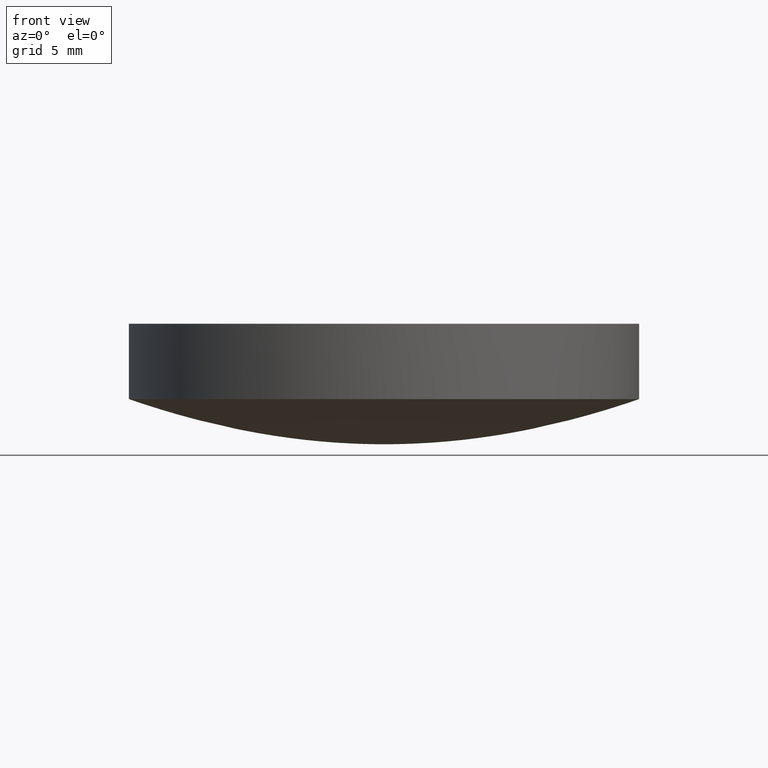
[diagram: clean part render]
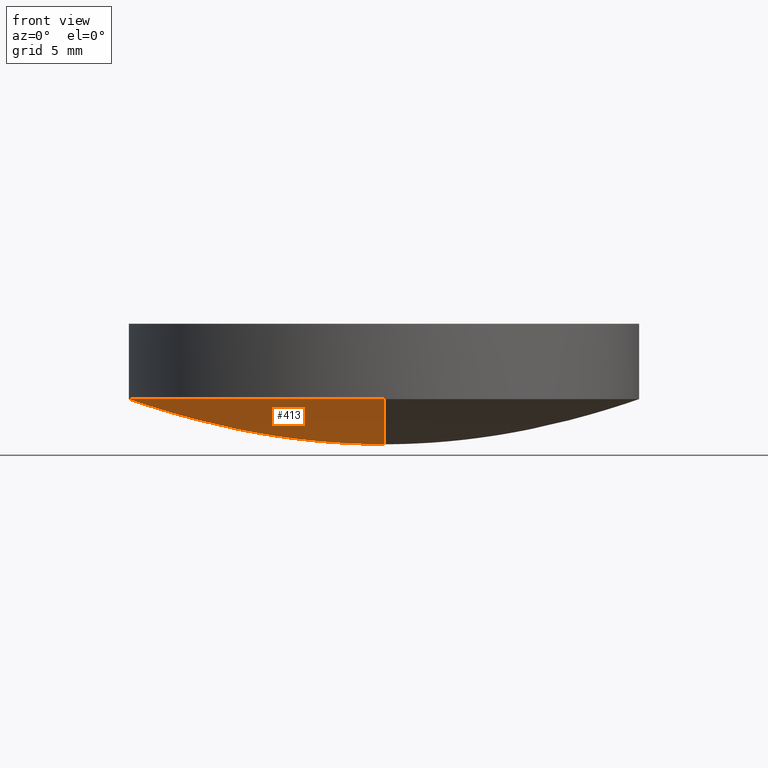
[diagram: same view with one face highlighted and labeled with its STEP entity id]
A machine part, front view. The second image highlights one B-rep face of the part: STEP entity #413.
In plain terms, the highlighted face is a freeform B-spline surface patch.
Its self-contained STEP definition (entity closure, byte-faithful):
#3 = CARTESIAN_POINT ( 'NONE',  ( -9.292796699924739176E-16, -7.588144358352749919, 0.8112916420088790437 ) ) ;
#5 = CARTESIAN_POINT ( 'NONE',  ( -2.823676809465809789, 1.729003383269460226E-16, 0.1104526157183659957 ) ) ;
#8 = CARTESIAN_POINT ( 'NONE',  ( 0.000000000000000000, 4.411899105315640668, 0.2736846880030949780 ) ) ;
#10 = CARTESIAN_POINT ( 'NONE',  ( 1.853112057911709964, -3.404111625274400151E-16, 0.04462971761608650750 ) ) ;
#11 = CARTESIAN_POINT ( 'NONE',  ( 0.000000000000000000, 11.12088207166359943, 1.723977609967809910 ) ) ;
#13 = CARTESIAN_POINT ( 'NONE',  ( 4.411899105315640668, -8.104527176228809510E-16, 0.2736846880030949780 ) ) ;
#15 = CARTESIAN_POINT ( 'NONE',  ( 0.000000000000000000, 8.293787562700359217, 0.9682949744517169721 ) ) ;
#16 = CARTESIAN_POINT ( 'NONE',  ( 12.69999999999999929, 12.69999999999999929, 2.247269223239399594 ) ) ;
#17 = CARTESIAN_POINT ( 'NONE',  ( 0.000000000000000000, 0.000000000000000000, 0.000000000000000000 ) ) ;
#20 = CARTESIAN_POINT ( 'NONE',  ( 9.881753641688270307, 9.881753641688270307, 1.370214453410330213 ) ) ;
#23 = CARTESIAN_POINT ( 'NONE',  ( -3.458006766538920453E-16, -2.823676809465809789, 0.1104526157183659957 ) ) ;
#26 = CARTESIAN_POINT ( 'NONE',  ( 0.000000000000000000, 0.2646510451225539962, 0.000000000000000000 ) ) ;
#27 = CARTESIAN_POINT ( 'NONE',  ( -5.403018117485879909E-16, -4.411899105315640668, 0.2736846880030949780 ) ) ;
#28 = CARTESIAN_POINT ( 'NONE',  ( -3.241040553003370126E-17, -0.2646510451225539962, 0.000000000000000000 ) ) ;
#32 = CARTESIAN_POINT ( 'NONE',  ( -7.588144358352749919, 4.646398349962369588E-16, 0.8112916420088790437 ) ) ;
#36 = CARTESIAN_POINT ( 'NONE',  ( 0.000000000000000000, 9.176139476843300002, 1.183323889670500062 ) ) ;
#37 = CIRCLE ( 'NONE', #285, 12.70000000000000284 ) ;
#43 = CARTESIAN_POINT ( 'NONE',  ( 6.000059958291040552, 6.000059958291040552, 0.5076367197546349797 ) ) ;
#45 = CARTESIAN_POINT ( 'NONE',  ( -6.705730617368448776, -6.705730617368448776, 0.6340659673807349517 ) ) ;
#46 = CARTESIAN_POINT ( 'NONE',  ( 0.000000000000000000, 11.12088207166359943, 1.723977609967809910 ) ) ;
#47 = CARTESIAN_POINT ( 'NONE',  ( 0.000000000000000000, 0.000000000000000000, 0.000000000000000000 ) ) ;
#48 = EDGE_CURVE ( 'NONE', #84, #178, #143, .T. ) ;
#49 = CARTESIAN_POINT ( 'NONE',  ( -5.117593248833900432, -5.117593248833889774, 0.3689892521256640245 ) ) ;
#50 = ORIENTED_EDGE ( 'NONE', *, *, #48, .T. ) ;
#51 = CARTESIAN_POINT ( 'NONE',  ( 0.000000000000000000, 3.529391070972859978, 0.1742189932542360098 ) ) ;
#52 = CARTESIAN_POINT ( 'NONE',  ( 11.12088207166359943, -2.042872894913700070E-15, 1.723977609967809910 ) ) ;
#54 = CARTESIAN_POINT ( 'NONE',  ( 4.411899105315639780, -4.411899105315650438, 0.2736846880030949780 ) ) ;
#55 = CARTESIAN_POINT ( 'NONE',  ( 12.00062017183519991, 12.00062017183519991, 2.005515679943810081 ) ) ;
#58 = CARTESIAN_POINT ( 'NONE',  ( -1.210165796725620084E-15, -9.881753641688270307, 1.370214453410329991 ) ) ;
#61 = CARTESIAN_POINT ( 'NONE',  ( -12.69999999999999929, 7.776507174585690191E-16, 2.247269223239400038 ) ) ;
#66 = CARTESIAN_POINT ( 'NONE',  ( -1.189071713856240088E-16, -0.9709507383550211035, 0.007996846882740939536 ) ) ;
#76 = CARTESIAN_POINT ( 'NONE',  ( 0.000000000000000000, 3.529391070972859978, 0.1742189932542360098 ) ) ;
#78 = CARTESIAN_POINT ( 'NONE',  ( -0.9709507383550212145, -0.9709507383550212145, 0.007996846882740939536 ) ) ;
#79 = CARTESIAN_POINT ( 'NONE',  ( 3.529391070972860422, -3.529391070972860422, 0.1742189932542360098 ) ) ;
#81 = CARTESIAN_POINT ( 'NONE',  ( 0.000000000000000000, 9.881753641688270307, 1.370214453410329991 ) ) ;
#83 = CARTESIAN_POINT ( 'NONE',  ( 5.117593248833900432, 5.117593248833889774, 0.3689892521256640245 ) ) ;
#84 = VERTEX_POINT ( 'NONE', #245 ) ;
#86 = CARTESIAN_POINT ( 'NONE',  ( 0.000000000000000000, 6.705730617368449664, 0.6340659673807349517 ) ) ;
#87 = CARTESIAN_POINT ( 'NONE',  ( -0.2646510451225540517, -0.2646510451225540517, 0.000000000000000000 ) ) ;
#90 = CARTESIAN_POINT ( 'NONE',  ( 6.000059958291040552, -6.000059958291040552, 0.5076367197546349797 ) ) ;
#91 = CARTESIAN_POINT ( 'NONE',  ( 0.000000000000000000, 12.00062017183519991, 2.005515679943810081 ) ) ;
#92 = CARTESIAN_POINT ( 'NONE',  ( 0.000000000000000000, 0.000000000000000000, 0.000000000000000000 ) ) ;
#93 = CARTESIAN_POINT ( 'NONE',  ( -3.529391070972859978, 2.161128739003080043E-16, 0.1742189932542360098 ) ) ;
#94 = CARTESIAN_POINT ( 'NONE',  ( -9.881753641688270307, -9.881753641688270307, 1.370214453410330213 ) ) ;
#96 = CARTESIAN_POINT ( 'NONE',  ( 11.12088207166360121, -11.12088207166360121, 1.723977609967809910 ) ) ;
#98 = EDGE_CURVE ( 'NONE', #230, #178, #170, .T. ) ;
#99 = CARTESIAN_POINT ( 'NONE',  ( -1.555301434917141588E-15, -12.70000000000000462, 2.247269223239400926 ) ) ;
#103 = CARTESIAN_POINT ( 'NONE',  ( -12.70000000000000107, 6.671230152170136933E-16, 2.247269223239400038 ) ) ;
#105 = CARTESIAN_POINT ( 'NONE',  ( 9.176139476843291121, -9.176139476843300002, 1.183323889670500062 ) ) ;
#118 = VERTEX_POINT ( 'NONE', #103 ) ;
#122 = CARTESIAN_POINT ( 'NONE',  ( -8.293787562700371652, -8.293787562700359217, 0.9682949744517168611 ) ) ;
#125 = CARTESIAN_POINT ( 'NONE',  ( 2.823676809465809345, 2.823676809465809345, 0.1104526157183659957 ) ) ;
#127 = CARTESIAN_POINT ( 'NONE',  ( 0.2646510451225540517, -0.2646510451225540517, 0.000000000000000000 ) ) ;
#128 = CARTESIAN_POINT ( 'NONE',  ( -5.403018117485879909E-16, -4.411899105315640668, 0.2736846880030949780 ) ) ;
#129 = CARTESIAN_POINT ( 'NONE',  ( 0.000000000000000000, 12.00062017183519991, 2.005515679943810081 ) ) ;
#130 = CARTESIAN_POINT ( 'NONE',  ( 0.000000000000000000, 0.2646510451225539962, 0.000000000000000000 ) ) ;
#131 = CARTESIAN_POINT ( 'NONE',  ( -6.000059958291040552, -6.000059958291040552, 0.5076367197546349797 ) ) ;
#132 = EDGE_LOOP ( 'NONE', ( #144, #520, #389, #50 ) ) ;
#136 = CARTESIAN_POINT ( 'NONE',  ( 6.705730617368449664, -1.231822730475699957E-15, 0.6340659673807349517 ) ) ;
#137 = CARTESIAN_POINT ( 'NONE',  ( 12.69999999999999929, -12.69999999999999929, 2.247269223239399594 ) ) ;
#138 = CARTESIAN_POINT ( 'NONE',  ( 0.000000000000000000, 0.000000000000000000, 0.000000000000000000 ) ) ;
#139 = CARTESIAN_POINT ( 'NONE',  ( 0.000000000000000000, 2.823676809465809789, 0.1104526157183659957 ) ) ;
#141 = CARTESIAN_POINT ( 'NONE',  ( 0.000000000000000000, 12.00062017183519991, 2.005515679943810081 ) ) ;
#143 = B_SPLINE_CURVE_WITH_KNOTS ( 'NONE', 3,
 ( #222, #129, #46, #81, #477, #15, #391, #86, #305, #183, #479, #51, #433, #356, #331, #26, #332 ),
 .UNSPECIFIED., .F., .F.,
 ( 4, 1, 1, 1, 1, 1, 1, 1, 1, 1, 1, 1, 1, 1, 4 ),
 ( 0.000000000000000000, 0.1713303433968769995, 0.2138002220556740052, 0.2983038402943499756, 0.3403375798742280245, 0.4240257264242249802, 0.4656801333943419996, 0.5486747096414229530, 0.5900148789183859988, 0.6724530698831030495, 0.7135510915708570545, 0.7955825529604799717, 0.8365159926623489950, 0.9387247161821089536, 1.000000000000000000 ),
 .UNSPECIFIED. ) ;
#144 = ORIENTED_EDGE ( 'NONE', *, *, #98, .F. ) ;
#146 = CARTESIAN_POINT ( 'NONE',  ( 0.000000000000000000, 0.9709507383550211035, 0.007996846882740939536 ) ) ;
#150 = CARTESIAN_POINT ( 'NONE',  ( 0.000000000000000000, 0.000000000000000000, 0.000000000000000000 ) ) ;
#153 = CARTESIAN_POINT ( 'NONE',  ( -1.210165796725620084E-15, -9.881753641688270307, 1.370214453410329991 ) ) ;
#160 = CARTESIAN_POINT ( 'NONE',  ( 0.000000000000000000, 8.293787562700359217, 0.9682949744517169721 ) ) ;
#165 = CARTESIAN_POINT ( 'NONE',  ( -8.293787562700359217, 8.293787562700359217, 0.9682949744517168611 ) ) ;
#167 = CARTESIAN_POINT ( 'NONE',  ( -1.015696039146910080E-15, -8.293787562700359217, 0.9682949744517169721 ) ) ;
#170 = B_SPLINE_CURVE_WITH_KNOTS ( 'NONE', 3,
 ( #99, #200, #364, #153, #532, #412, #247, #414, #416, #500, #27, #539, #23, #455, #66, #28, #276 ),
 .UNSPECIFIED., .F., .F.,
 ( 4, 1, 1, 1, 1, 1, 1, 1, 1, 1, 1, 1, 1, 1, 4 ),
 ( 0.000000000000000000, 0.1713303433968769995, 0.2138002220556740052, 0.2983038402943499756, 0.3403375798742280245, 0.4240257264242249802, 0.4656801333943419996, 0.5486747096414229530, 0.5900148789183859988, 0.6724530698831030495, 0.7135510915708570545, 0.7955825529604799717, 0.8365159926623489950, 0.9387247161821089536, 1.000000000000000000 ),
 .UNSPECIFIED. ) ;
#172 = CARTESIAN_POINT ( 'NONE',  ( -3.458006766538920453E-16, -2.823676809465809789, 0.1104526157183659957 ) ) ;
#175 = CARTESIAN_POINT ( 'NONE',  ( 0.000000000000000000, 5.117593248833890662, 0.3689892521256640801 ) ) ;
#178 = VERTEX_POINT ( 'NONE', #537 ) ;
#180 = CARTESIAN_POINT ( 'NONE',  ( 1.853112057911709742, 1.853112057911709742, 0.04462971761608650056 ) ) ;
#182 = CARTESIAN_POINT ( 'NONE',  ( 9.176139476843300002, -1.685629475826870230E-15, 1.183323889670500062 ) ) ;
#183 = CARTESIAN_POINT ( 'NONE',  ( 0.000000000000000000, 5.117593248833890662, 0.3689892521256640801 ) ) ;
#186 = CARTESIAN_POINT ( 'NONE',  ( 0.000000000000000000, 0.000000000000000000, 0.000000000000000000 ) ) ;
#187 = CARTESIAN_POINT ( 'NONE',  ( 0.000000000000000000, 1.853112057911709964, 0.04462971761608650750 ) ) ;
#191 =( BOUNDED_SURFACE ( )  B_SPLINE_SURFACE ( 3, 2, ( 
 ( #362, #442, #61, #283, #243, #137, #358, #16, #197 ),
 ( #141, #480, #410, #357, #397, #533, #320, #55, #91 ),
 ( #11, #525, #268, #487, #237, #96, #52, #277, #445 ),
 ( #524, #317, #484, #94, #58, #240, #406, #20, #193 ),
 ( #535, #341, #438, #288, #248, #105, #182, #311, #36 ),
 ( #160, #165, #510, #122, #167, #213, #470, #419, #505 ),
 ( #218, #456, #32, #385, #3, #459, #376, #333, #209 ),
 ( #379, #336, #263, #45, #431, #306, #136, #310, #315 ),
 ( #478, #519, #388, #131, #523, #90, #476, #43, #440 ),
 ( #348, #267, #223, #49, #482, #437, #302, #83, #175 ),
 ( #229, #475, #473, #398, #128, #54, #13, #264, #8 ),
 ( #234, #435, #93, #514, #271, #79, #429, #220, #76 ),
 ( #225, #350, #5, #402, #172, #343, #512, #125, #139 ),
 ( #187, #261, #355, #304, #516, #395, #10, #180, #352 ),
 ( #146, #321, #392, #78, #346, #257, #434, #227, #515 ),
 ( #349, #260, #217, #87, #351, #127, #428, #430, #130 ),
 ( #309, #526, #17, #481, #150, #47, #92, #138, #186 ) ),
 .UNSPECIFIED., .F., .T., .T. ) 
 B_SPLINE_SURFACE_WITH_KNOTS ( ( 4, 1, 1, 1, 1, 1, 1, 1, 1, 1, 1, 1, 1, 1, 4 ),
 ( 3, 2, 2, 2, 3 ),
 ( 0.000000000000000000, 0.1713303433968769995, 0.2138002220556740052, 0.2983038402943499756, 0.3403375798742280245, 0.4240257264242249802, 0.4656801333943419996, 0.5486747096414229530, 0.5900148789183859988, 0.6724530698831030495, 0.7135510915708570545, 0.7955825529604799717, 0.8365159926623489950, 0.9387247161821089536, 1.000000000000000000 ),
 ( 0.000000000000000000, 90.00000000000000000, 180.0000000000000000, 270.0000000000000000, 360.0000000000000000 ),
 .UNSPECIFIED. ) 
 GEOMETRIC_REPRESENTATION_ITEM ( )  RATIONAL_B_SPLINE_SURFACE ( (
 ( 1.000000000000000000, 0.7071067811865480168, 1.000000000000000000, 0.7071067811865480168, 1.000000000000000000, 0.7071067811865480168, 1.000000000000000000, 0.7071067811865480168, 1.000000000000000000),
 ( 1.000000000000000000, 0.7071067811865480168, 1.000000000000000000, 0.7071067811865480168, 1.000000000000000000, 0.7071067811865480168, 1.000000000000000000, 0.7071067811865480168, 1.000000000000000000),
 ( 1.000000000000000000, 0.7071067811865480168, 1.000000000000000000, 0.7071067811865480168, 1.000000000000000000, 0.7071067811865480168, 1.000000000000000000, 0.7071067811865480168, 1.000000000000000000),
 ( 1.000000000000000000, 0.7071067811865480168, 1.000000000000000000, 0.7071067811865480168, 1.000000000000000000, 0.7071067811865480168, 1.000000000000000000, 0.7071067811865480168, 1.000000000000000000),
 ( 1.000000000000000000, 0.7071067811865480168, 1.000000000000000000, 0.7071067811865480168, 1.000000000000000000, 0.7071067811865480168, 1.000000000000000000, 0.7071067811865480168, 1.000000000000000000),
 ( 1.000000000000000000, 0.7071067811865480168, 1.000000000000000000, 0.7071067811865480168, 1.000000000000000000, 0.7071067811865480168, 1.000000000000000000, 0.7071067811865480168, 1.000000000000000000),
 ( 1.000000000000000000, 0.7071067811865480168, 1.000000000000000000, 0.7071067811865480168, 1.000000000000000000, 0.7071067811865480168, 1.000000000000000000, 0.7071067811865480168, 1.000000000000000000),
 ( 1.000000000000000000, 0.7071067811865480168, 1.000000000000000000, 0.7071067811865480168, 1.000000000000000000, 0.7071067811865480168, 1.000000000000000000, 0.7071067811865480168, 1.000000000000000000),
 ( 1.000000000000000000, 0.7071067811865480168, 1.000000000000000000, 0.7071067811865480168, 1.000000000000000000, 0.7071067811865480168, 1.000000000000000000, 0.7071067811865480168, 1.000000000000000000),
 ( 1.000000000000000000, 0.7071067811865480168, 1.000000000000000000, 0.7071067811865480168, 1.000000000000000000, 0.7071067811865480168, 1.000000000000000000, 0.7071067811865480168, 1.000000000000000000),
 ( 1.000000000000000000, 0.7071067811865480168, 1.000000000000000000, 0.7071067811865480168, 1.000000000000000000, 0.7071067811865480168, 1.000000000000000000, 0.7071067811865480168, 1.000000000000000000),
 ( 1.000000000000000000, 0.7071067811865480168, 1.000000000000000000, 0.7071067811865480168, 1.000000000000000000, 0.7071067811865480168, 1.000000000000000000, 0.7071067811865480168, 1.000000000000000000),
 ( 1.000000000000000000, 0.7071067811865480168, 1.000000000000000000, 0.7071067811865480168, 1.000000000000000000, 0.7071067811865480168, 1.000000000000000000, 0.7071067811865480168, 1.000000000000000000),
 ( 1.000000000000000000, 0.7071067811865480168, 1.000000000000000000, 0.7071067811865480168, 1.000000000000000000, 0.7071067811865480168, 1.000000000000000000, 0.7071067811865480168, 1.000000000000000000),
 ( 1.000000000000000000, 0.7071067811865480168, 1.000000000000000000, 0.7071067811865480168, 1.000000000000000000, 0.7071067811865480168, 1.000000000000000000, 0.7071067811865480168, 1.000000000000000000),
 ( 1.000000000000000000, 0.7071067811865480168, 1.000000000000000000, 0.7071067811865480168, 1.000000000000000000, 0.7071067811865480168, 1.000000000000000000, 0.7071067811865480168, 1.000000000000000000),
 ( 1.000000000000000000, 0.7071067811865480168, 1.000000000000000000, 0.7071067811865480168, 1.000000000000000000, 0.7071067811865480168, 1.000000000000000000, 0.7071067811865480168, 1.000000000000000000) ) ) 
 REPRESENTATION_ITEM ( '' )  SURFACE ( )  );
#192 = DIRECTION ( 'NONE',  ( 3.414809992080330256E-17, -3.414809992080330256E-17, -1.000000000000000000 ) ) ;
#193 = CARTESIAN_POINT ( 'NONE',  ( 0.000000000000000000, 9.881753641688270307, 1.370214453410329991 ) ) ;
#197 = CARTESIAN_POINT ( 'NONE',  ( 0.000000000000000000, 12.69999999999999929, 2.247269223239400038 ) ) ;
#199 = EDGE_CURVE ( 'NONE', #118, #84, #37, .T. ) ;
#200 = CARTESIAN_POINT ( 'NONE',  ( -1.469652108122110051E-15, -12.00062017183519991, 2.005515679943810081 ) ) ;
#207 = EDGE_CURVE ( 'NONE', #230, #118, #382, .T. ) ;
#209 = CARTESIAN_POINT ( 'NONE',  ( 0.000000000000000000, 7.588144358352749919, 0.8112916420088790437 ) ) ;
#213 = CARTESIAN_POINT ( 'NONE',  ( 8.293787562700359217, -8.293787562700371652, 0.9682949744517168611 ) ) ;
#217 = CARTESIAN_POINT ( 'NONE',  ( -0.2646510451225539962, 1.620520276501689993E-17, 0.000000000000000000 ) ) ;
#218 = CARTESIAN_POINT ( 'NONE',  ( 0.000000000000000000, 7.588144358352749919, 0.8112916420088790437 ) ) ;
#220 = CARTESIAN_POINT ( 'NONE',  ( 3.529391070972860422, 3.529391070972860422, 0.1742189932542360098 ) ) ;
#222 = CARTESIAN_POINT ( 'NONE',  ( -3.851859888774471706E-31, 12.70000000000000284, 2.247269223239400038 ) ) ;
#223 = CARTESIAN_POINT ( 'NONE',  ( -5.117593248833890662, 3.133622095761270144E-16, 0.3689892521256640801 ) ) ;
#225 = CARTESIAN_POINT ( 'NONE',  ( 0.000000000000000000, 2.823676809465809789, 0.1104526157183659957 ) ) ;
#227 = CARTESIAN_POINT ( 'NONE',  ( 0.9709507383550212145, 0.9709507383550199933, 0.007996846882740939536 ) ) ;
#229 = CARTESIAN_POINT ( 'NONE',  ( 0.000000000000000000, 4.411899105315640668, 0.2736846880030949780 ) ) ;
#230 = VERTEX_POINT ( 'NONE', #289 ) ;
#234 = CARTESIAN_POINT ( 'NONE',  ( 0.000000000000000000, 3.529391070972859978, 0.1742189932542360098 ) ) ;
#237 = CARTESIAN_POINT ( 'NONE',  ( -1.361915263275800047E-15, -11.12088207166359943, 1.723977609967809910 ) ) ;
#239 = CARTESIAN_POINT ( 'NONE',  ( 1.734723475976807094E-15, -1.345898117247522881E-15, 2.247269223239400482 ) ) ;
#240 = CARTESIAN_POINT ( 'NONE',  ( 9.881753641688270307, -9.881753641688270307, 1.370214453410330213 ) ) ;
#242 = DIRECTION ( 'NONE',  ( -1.000000000000000000, 0.000000000000000000, -3.414809992080328407E-17 ) ) ;
#243 = CARTESIAN_POINT ( 'NONE',  ( -1.555301434917140010E-15, -12.69999999999999929, 2.247269223239400038 ) ) ;
#245 = CARTESIAN_POINT ( 'NONE',  ( -3.851859888774471706E-31, 12.70000000000000284, 2.247269223239400038 ) ) ;
#247 = CARTESIAN_POINT ( 'NONE',  ( -9.292796699924739176E-16, -7.588144358352749919, 0.8112916420088790437 ) ) ;
#248 = CARTESIAN_POINT ( 'NONE',  ( -1.123752983884580088E-15, -9.176139476843300002, 1.183323889670500062 ) ) ;
#257 = CARTESIAN_POINT ( 'NONE',  ( 0.9709507383550212145, -0.9709507383550212145, 0.007996846882740939536 ) ) ;
#260 = CARTESIAN_POINT ( 'NONE',  ( -0.2646510451225540517, 0.2646510451225540517, 0.000000000000000000 ) ) ;
#261 = CARTESIAN_POINT ( 'NONE',  ( -1.853112057911709742, 1.853112057911709742, 0.04462971761608650056 ) ) ;
#263 = CARTESIAN_POINT ( 'NONE',  ( -6.705730617368449664, 4.106075768252340420E-16, 0.6340659673807349517 ) ) ;
#264 = CARTESIAN_POINT ( 'NONE',  ( 4.411899105315650438, 4.411899105315639780, 0.2736846880030949780 ) ) ;
#267 = CARTESIAN_POINT ( 'NONE',  ( -5.117593248833889774, 5.117593248833889774, 0.3689892521256640245 ) ) ;
#268 = CARTESIAN_POINT ( 'NONE',  ( -11.12088207166359943, 6.809576316379000233E-16, 1.723977609967809910 ) ) ;
#271 = CARTESIAN_POINT ( 'NONE',  ( -4.322257478006169948E-16, -3.529391070972859978, 0.1742189932542360098 ) ) ;
#273 = AXIS2_PLACEMENT_3D ( 'NONE', #405, #192, #242 ) ;
#276 = CARTESIAN_POINT ( 'NONE',  ( 0.000000000000000000, 0.000000000000000000, 0.000000000000000000 ) ) ;
#277 = CARTESIAN_POINT ( 'NONE',  ( 11.12088207166360121, 11.12088207166360121, 1.723977609967809910 ) ) ;
#278 = DIRECTION ( 'NONE',  ( 3.414809992080330256E-17, -3.414809992080330256E-17, -1.000000000000000000 ) ) ;
#283 = CARTESIAN_POINT ( 'NONE',  ( -12.69999999999999929, -12.69999999999999929, 2.247269223239399594 ) ) ;
#285 = AXIS2_PLACEMENT_3D ( 'NONE', #239, #278, #367 ) ;
#288 = CARTESIAN_POINT ( 'NONE',  ( -9.176139476843300002, -9.176139476843300002, 1.183323889670500062 ) ) ;
#289 = CARTESIAN_POINT ( 'NONE',  ( -1.555301434917141588E-15, -12.70000000000000462, 2.247269223239400926 ) ) ;
#302 = CARTESIAN_POINT ( 'NONE',  ( 5.117593248833890662, -9.400866287283799585E-16, 0.3689892521256640801 ) ) ;
#304 = CARTESIAN_POINT ( 'NONE',  ( -1.853112057911709742, -1.853112057911709742, 0.04462971761608650056 ) ) ;
#305 = CARTESIAN_POINT ( 'NONE',  ( 0.000000000000000000, 6.000059958291039663, 0.5076367197546349797 ) ) ;
#306 = CARTESIAN_POINT ( 'NONE',  ( 6.705730617368448776, -6.705730617368448776, 0.6340659673807349517 ) ) ;
#309 = CARTESIAN_POINT ( 'NONE',  ( 0.000000000000000000, 0.000000000000000000, 0.000000000000000000 ) ) ;
#310 = CARTESIAN_POINT ( 'NONE',  ( 6.705730617368448776, 6.705730617368448776, 0.6340659673807349517 ) ) ;
#311 = CARTESIAN_POINT ( 'NONE',  ( 9.176139476843300002, 9.176139476843291121, 1.183323889670500062 ) ) ;
#315 = CARTESIAN_POINT ( 'NONE',  ( 0.000000000000000000, 6.705730617368449664, 0.6340659673807349517 ) ) ;
#317 = CARTESIAN_POINT ( 'NONE',  ( -9.881753641688270307, 9.881753641688270307, 1.370214453410330213 ) ) ;
#320 = CARTESIAN_POINT ( 'NONE',  ( 12.00062017183519991, -2.204478162183170006E-15, 2.005515679943810081 ) ) ;
#321 = CARTESIAN_POINT ( 'NONE',  ( -0.9709507383550212145, 0.9709507383550212145, 0.007996846882740939536 ) ) ;
#331 = CARTESIAN_POINT ( 'NONE',  ( 0.000000000000000000, 0.9709507383550211035, 0.007996846882740939536 ) ) ;
#332 = CARTESIAN_POINT ( 'NONE',  ( 0.000000000000000000, 0.000000000000000000, 0.000000000000000000 ) ) ;
#333 = CARTESIAN_POINT ( 'NONE',  ( 7.588144358352750807, 7.588144358352750807, 0.8112916420088790437 ) ) ;
#336 = CARTESIAN_POINT ( 'NONE',  ( -6.705730617368448776, 6.705730617368448776, 0.6340659673807349517 ) ) ;
#341 = CARTESIAN_POINT ( 'NONE',  ( -9.176139476843300002, 9.176139476843300002, 1.183323889670500062 ) ) ;
#343 = CARTESIAN_POINT ( 'NONE',  ( 2.823676809465809345, -2.823676809465809345, 0.1104526157183659957 ) ) ;
#346 = CARTESIAN_POINT ( 'NONE',  ( -1.189071713856240088E-16, -0.9709507383550211035, 0.007996846882740939536 ) ) ;
#348 = CARTESIAN_POINT ( 'NONE',  ( 0.000000000000000000, 5.117593248833890662, 0.3689892521256640801 ) ) ;
#349 = CARTESIAN_POINT ( 'NONE',  ( 0.000000000000000000, 0.2646510451225539962, 0.000000000000000000 ) ) ;
#350 = CARTESIAN_POINT ( 'NONE',  ( -2.823676809465809345, 2.823676809465809345, 0.1104526157183659957 ) ) ;
#351 = CARTESIAN_POINT ( 'NONE',  ( -3.241040553003370126E-17, -0.2646510451225539962, 0.000000000000000000 ) ) ;
#352 = CARTESIAN_POINT ( 'NONE',  ( 0.000000000000000000, 1.853112057911709964, 0.04462971761608650750 ) ) ;
#355 = CARTESIAN_POINT ( 'NONE',  ( -1.853112057911709964, 1.134703875091469922E-16, 0.04462971761608650750 ) ) ;
#356 = CARTESIAN_POINT ( 'NONE',  ( 0.000000000000000000, 1.853112057911709964, 0.04462971761608650750 ) ) ;
#357 = CARTESIAN_POINT ( 'NONE',  ( -12.00062017183519991, -12.00062017183519991, 2.005515679943810081 ) ) ;
#358 = CARTESIAN_POINT ( 'NONE',  ( 12.69999999999999929, -2.332952152375710015E-15, 2.247269223239400038 ) ) ;
#362 = CARTESIAN_POINT ( 'NONE',  ( 0.000000000000000000, 12.69999999999999929, 2.247269223239400038 ) ) ;
#364 = CARTESIAN_POINT ( 'NONE',  ( -1.361915263275800047E-15, -11.12088207166359943, 1.723977609967809910 ) ) ;
#367 = DIRECTION ( 'NONE',  ( -1.000000000000000000, 0.000000000000000000, -3.414809992080328407E-17 ) ) ;
#376 = CARTESIAN_POINT ( 'NONE',  ( 7.588144358352749919, -1.393919504988710285E-15, 0.8112916420088790437 ) ) ;
#379 = CARTESIAN_POINT ( 'NONE',  ( 0.000000000000000000, 6.705730617368449664, 0.6340659673807349517 ) ) ;
#382 = CIRCLE ( 'NONE', #273, 12.70000000000000284 ) ;
#385 = CARTESIAN_POINT ( 'NONE',  ( -7.588144358352750807, -7.588144358352750807, 0.8112916420088790437 ) ) ;
#388 = CARTESIAN_POINT ( 'NONE',  ( -6.000059958291039663, 3.673977111306659858E-16, 0.5076367197546349797 ) ) ;
#389 = ORIENTED_EDGE ( 'NONE', *, *, #199, .T. ) ;
#391 = CARTESIAN_POINT ( 'NONE',  ( 0.000000000000000000, 7.588144358352749919, 0.8112916420088790437 ) ) ;
#392 = CARTESIAN_POINT ( 'NONE',  ( -0.9709507383550211035, 5.945358569281179488E-17, 0.007996846882740939536 ) ) ;
#395 = CARTESIAN_POINT ( 'NONE',  ( 1.853112057911709742, -1.853112057911709742, 0.04462971761608650056 ) ) ;
#397 = CARTESIAN_POINT ( 'NONE',  ( -1.469652108122110051E-15, -12.00062017183519991, 2.005515679943810081 ) ) ;
#398 = CARTESIAN_POINT ( 'NONE',  ( -4.411899105315639780, -4.411899105315639780, 0.2736846880030949780 ) ) ;
#402 = CARTESIAN_POINT ( 'NONE',  ( -2.823676809465809345, -2.823676809465809345, 0.1104526157183659957 ) ) ;
#405 = CARTESIAN_POINT ( 'NONE',  ( 1.734723475976807094E-15, -1.345898117247522881E-15, 2.247269223239400482 ) ) ;
#406 = CARTESIAN_POINT ( 'NONE',  ( 9.881753641688270307, -1.815248695088439888E-15, 1.370214453410329991 ) ) ;
#410 = CARTESIAN_POINT ( 'NONE',  ( -12.00062017183519991, 7.348260540610550253E-16, 2.005515679943810081 ) ) ;
#412 = CARTESIAN_POINT ( 'NONE',  ( -1.015696039146910080E-15, -8.293787562700359217, 0.9682949744517169721 ) ) ;
#413 = ADVANCED_FACE ( 'NONE', ( #489 ), #191, .T. ) ;
#414 = CARTESIAN_POINT ( 'NONE',  ( -8.212151536504669993E-16, -6.705730617368449664, 0.6340659673807349517 ) ) ;
#416 = CARTESIAN_POINT ( 'NONE',  ( -7.347954222613319716E-16, -6.000059958291039663, 0.5076367197546349797 ) ) ;
#419 = CARTESIAN_POINT ( 'NONE',  ( 8.293787562700371652, 8.293787562700359217, 0.9682949744517168611 ) ) ;
#428 = CARTESIAN_POINT ( 'NONE',  ( 0.2646510451225539962, -4.861560829505060119E-17, 0.000000000000000000 ) ) ;
#429 = CARTESIAN_POINT ( 'NONE',  ( 3.529391070972859978, -6.483386217009249744E-16, 0.1742189932542360098 ) ) ;
#430 = CARTESIAN_POINT ( 'NONE',  ( 0.2646510451225540517, 0.2646510451225540517, 0.000000000000000000 ) ) ;
#431 = CARTESIAN_POINT ( 'NONE',  ( -8.212151536504669993E-16, -6.705730617368449664, 0.6340659673807349517 ) ) ;
#433 = CARTESIAN_POINT ( 'NONE',  ( 0.000000000000000000, 2.823676809465809789, 0.1104526157183659957 ) ) ;
#434 = CARTESIAN_POINT ( 'NONE',  ( 0.9709507383550211035, -1.783607570784349902E-16, 0.007996846882740939536 ) ) ;
#435 = CARTESIAN_POINT ( 'NONE',  ( -3.529391070972860422, 3.529391070972860422, 0.1742189932542360098 ) ) ;
#437 = CARTESIAN_POINT ( 'NONE',  ( 5.117593248833889774, -5.117593248833900432, 0.3689892521256640245 ) ) ;
#438 = CARTESIAN_POINT ( 'NONE',  ( -9.176139476843300002, 5.618764919422910300E-16, 1.183323889670500062 ) ) ;
#440 = CARTESIAN_POINT ( 'NONE',  ( 0.000000000000000000, 6.000059958291039663, 0.5076367197546349797 ) ) ;
#442 = CARTESIAN_POINT ( 'NONE',  ( -12.69999999999999929, 12.69999999999999929, 2.247269223239399594 ) ) ;
#445 = CARTESIAN_POINT ( 'NONE',  ( 0.000000000000000000, 11.12088207166359943, 1.723977609967809910 ) ) ;
#455 = CARTESIAN_POINT ( 'NONE',  ( -2.269407750182939844E-16, -1.853112057911709964, 0.04462971761608650750 ) ) ;
#456 = CARTESIAN_POINT ( 'NONE',  ( -7.588144358352750807, 7.588144358352750807, 0.8112916420088790437 ) ) ;
#459 = CARTESIAN_POINT ( 'NONE',  ( 7.588144358352750807, -7.588144358352750807, 0.8112916420088790437 ) ) ;
#470 = CARTESIAN_POINT ( 'NONE',  ( 8.293787562700359217, -1.523544058720369952E-15, 0.9682949744517169721 ) ) ;
#473 = CARTESIAN_POINT ( 'NONE',  ( -4.411899105315640668, 2.701509058742939955E-16, 0.2736846880030949780 ) ) ;
#475 = CARTESIAN_POINT ( 'NONE',  ( -4.411899105315639780, 4.411899105315639780, 0.2736846880030949780 ) ) ;
#476 = CARTESIAN_POINT ( 'NONE',  ( 6.000059958291039663, -1.102193133392000028E-15, 0.5076367197546349797 ) ) ;
#477 = CARTESIAN_POINT ( 'NONE',  ( 0.000000000000000000, 9.176139476843300002, 1.183323889670500062 ) ) ;
#478 = CARTESIAN_POINT ( 'NONE',  ( 0.000000000000000000, 6.000059958291039663, 0.5076367197546349797 ) ) ;
#479 = CARTESIAN_POINT ( 'NONE',  ( 0.000000000000000000, 4.411899105315640668, 0.2736846880030949780 ) ) ;
#480 = CARTESIAN_POINT ( 'NONE',  ( -12.00062017183519991, 12.00062017183519991, 2.005515679943810081 ) ) ;
#481 = CARTESIAN_POINT ( 'NONE',  ( 0.000000000000000000, 0.000000000000000000, 0.000000000000000000 ) ) ;
#482 = CARTESIAN_POINT ( 'NONE',  ( -6.267244191522530427E-16, -5.117593248833890662, 0.3689892521256640801 ) ) ;
#484 = CARTESIAN_POINT ( 'NONE',  ( -9.881753641688270307, 6.050828983628121126E-16, 1.370214453410329991 ) ) ;
#487 = CARTESIAN_POINT ( 'NONE',  ( -11.12088207166360121, -11.12088207166360121, 1.723977609967809910 ) ) ;
#489 = FACE_OUTER_BOUND ( 'NONE', #132, .T. ) ;
#500 = CARTESIAN_POINT ( 'NONE',  ( -6.267244191522530427E-16, -5.117593248833890662, 0.3689892521256640801 ) ) ;
#505 = CARTESIAN_POINT ( 'NONE',  ( 0.000000000000000000, 8.293787562700359217, 0.9682949744517169721 ) ) ;
#510 = CARTESIAN_POINT ( 'NONE',  ( -8.293787562700359217, 5.078480195734570121E-16, 0.9682949744517169721 ) ) ;
#512 = CARTESIAN_POINT ( 'NONE',  ( 2.823676809465809789, -5.187010149808380186E-16, 0.1104526157183659957 ) ) ;
#514 = CARTESIAN_POINT ( 'NONE',  ( -3.529391070972860422, -3.529391070972860422, 0.1742189932542360098 ) ) ;
#515 = CARTESIAN_POINT ( 'NONE',  ( 0.000000000000000000, 0.9709507383550211035, 0.007996846882740939536 ) ) ;
#516 = CARTESIAN_POINT ( 'NONE',  ( -2.269407750182939844E-16, -1.853112057911709964, 0.04462971761608650750 ) ) ;
#519 = CARTESIAN_POINT ( 'NONE',  ( -6.000059958291040552, 6.000059958291040552, 0.5076367197546349797 ) ) ;
#520 = ORIENTED_EDGE ( 'NONE', *, *, #207, .T. ) ;
#523 = CARTESIAN_POINT ( 'NONE',  ( -7.347954222613319716E-16, -6.000059958291039663, 0.5076367197546349797 ) ) ;
#524 = CARTESIAN_POINT ( 'NONE',  ( 0.000000000000000000, 9.881753641688270307, 1.370214453410329991 ) ) ;
#525 = CARTESIAN_POINT ( 'NONE',  ( -11.12088207166360121, 11.12088207166360121, 1.723977609967809910 ) ) ;
#526 = CARTESIAN_POINT ( 'NONE',  ( 0.000000000000000000, 0.000000000000000000, 0.000000000000000000 ) ) ;
#532 = CARTESIAN_POINT ( 'NONE',  ( -1.123752983884580088E-15, -9.176139476843300002, 1.183323889670500062 ) ) ;
#533 = CARTESIAN_POINT ( 'NONE',  ( 12.00062017183519991, -12.00062017183519991, 2.005515679943810081 ) ) ;
#535 = CARTESIAN_POINT ( 'NONE',  ( 0.000000000000000000, 9.176139476843300002, 1.183323889670500062 ) ) ;
#537 = CARTESIAN_POINT ( 'NONE',  ( 0.000000000000000000, 0.000000000000000000, 0.000000000000000000 ) ) ;
#539 = CARTESIAN_POINT ( 'NONE',  ( -4.322257478006169948E-16, -3.529391070972859978, 0.1742189932542360098 ) ) ;